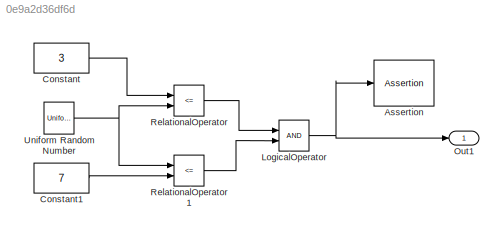
MODEL slx_0e9a2d36df6d
KIND model
CONFIG AbsTol = auto
CONFIG EnableMultiTasking = on
CONFIG FixedStep = 0.100000
CONFIG MaxStep = auto
CONFIG MinStep = auto
CONFIG RelTol = 1e-3
CONFIG SampleTimeConstraint = Unconstrained
CONFIG Solver = FixedStepDiscrete
CONFIG SolverName = FixedStepDiscrete
CONFIG StartTime = 0.0
CONFIG StopTime = 10.0
WORKSPACE source: MAT-file member
WORKSPACE already_pp = 0
BLOCK [Assertion] Assertion
  StopWhenAssertionFail = off
BLOCK [Constant] Constant
  Value = 3
BLOCK [Constant] Constant1
  Value = 7
BLOCK [Logic] LogicalOperator
  AllPortsSameDT = off
  OutDataTypeStr = boolean
  Ports = [2, 1]
BLOCK [Outport] Out1
  IconDisplay = Port number
BLOCK [RelationalOperator] RelationalOperator
  InputSameDT = off
  Operator = <=
  OutDataTypeStr = boolean
  Ports = [2, 1]
BLOCK [RelationalOperator] RelationalOperator1
  InputSameDT = off
  Operator = <=
  OutDataTypeStr = boolean
  Ports = [2, 1]
BLOCK [UniformRandomNumber] Uniform Random Number
  Maximum = 7
  Minimum = 3
  SampleTime = 0.1
  Seed = 15
LINE Constant1:1 -> RelationalOperator1:2
LINE Constant:1 -> RelationalOperator:1
NET LogicalOperator:1 -> Assertion:1, Out1:1
LINE RelationalOperator1:1 -> LogicalOperator:2
LINE RelationalOperator:1 -> LogicalOperator:1
NET Uniform Random Number:1 -> RelationalOperator1:1, RelationalOperator:2
note: NET lines group one-source signal fan-out (src -> all destinations, sorted); 1:1 wires keep LINE
